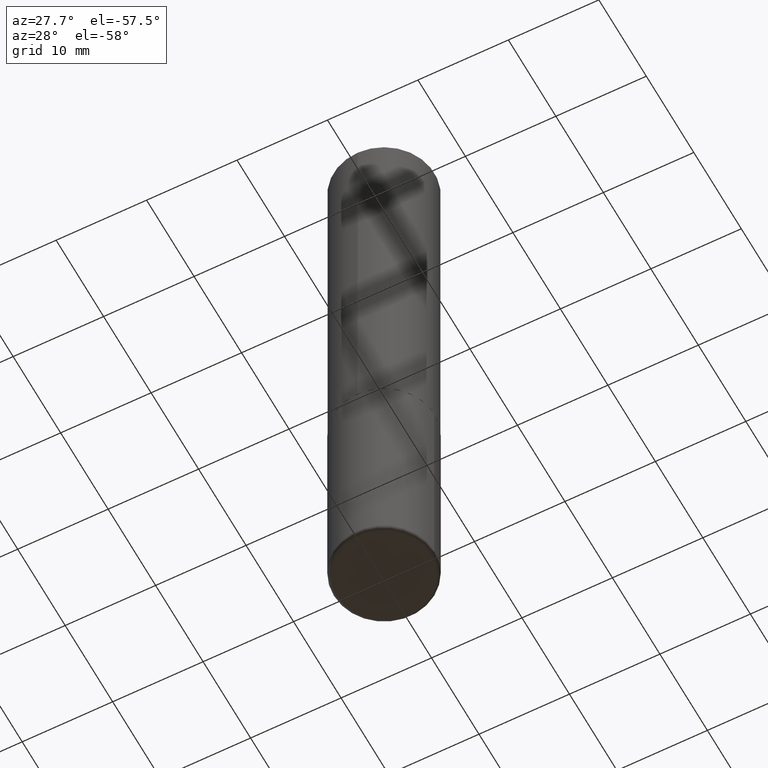
[diagram: clean part render]
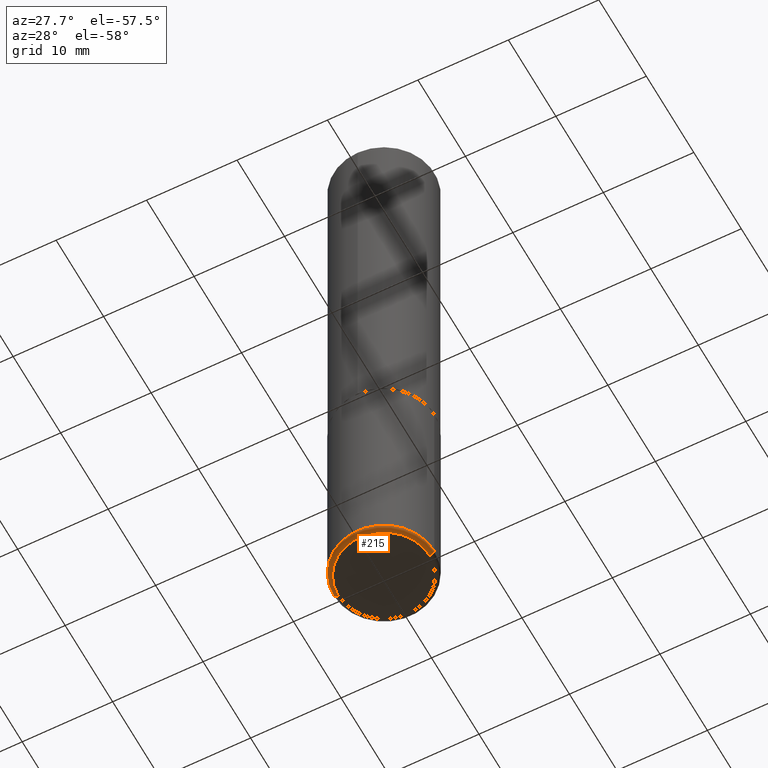
[diagram: same view with one face highlighted and labeled with its STEP entity id]
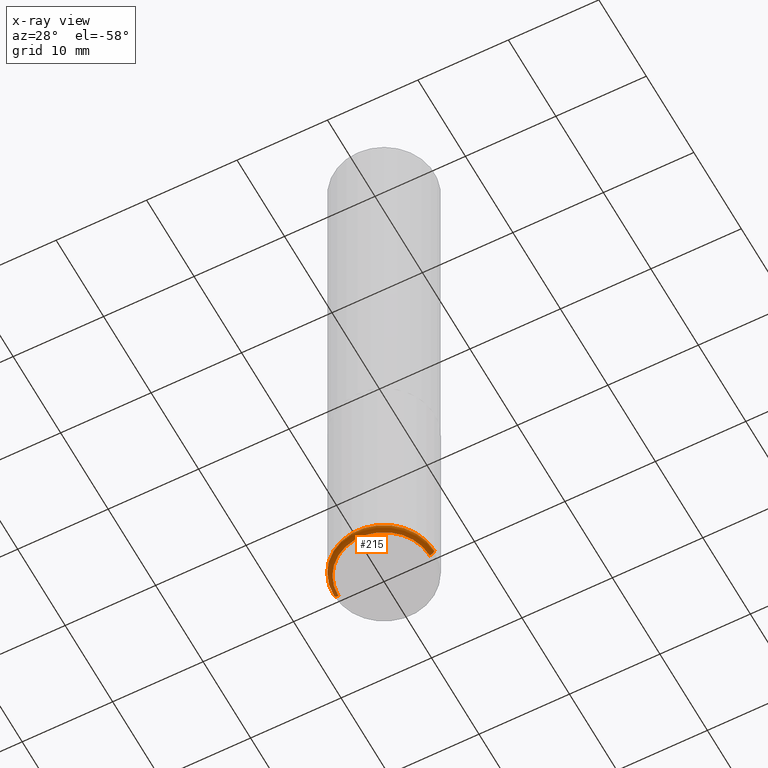
[diagram: x-ray of the same camera — body ghosted, the highlighted face saturated]
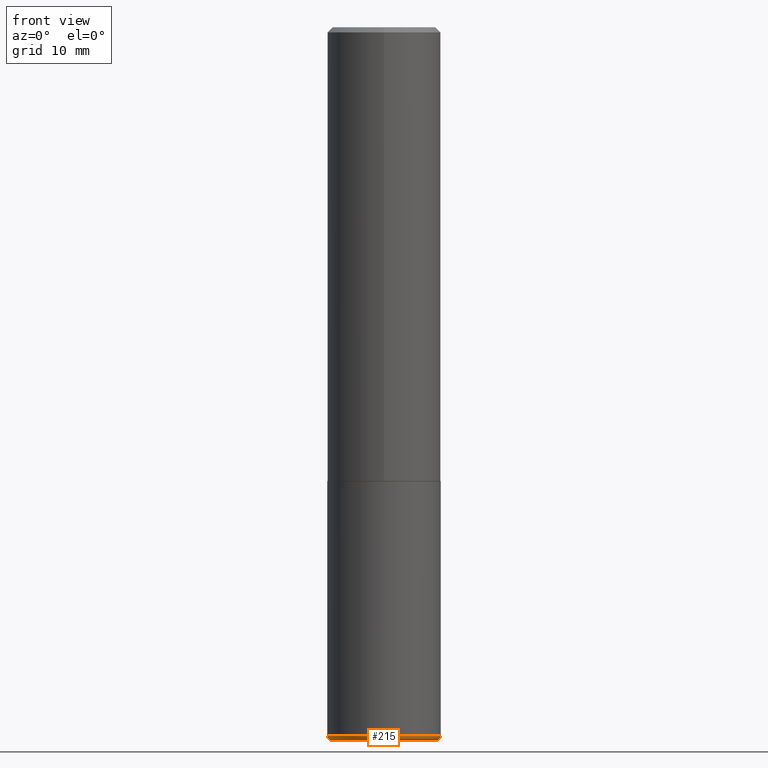
[diagram: same view with one face highlighted and labeled with its STEP entity id]
A machine part, auxiliary view. The second image highlights one B-rep face of the part: STEP entity #215.
The next image is the same camera in x-ray: the body ghosted, the highlighted face saturated — about 0% of this face is hidden behind the body in this view.
A second angle (front view) of the same face is appended — the face is thin or edge-on in the first view.
In plain terms, the highlighted toroidal blend (fillet) surface has major radius 5.0483 mm and minor (blend) radius 0.508 mm.
Its self-contained STEP definition (entity closure, byte-faithful):
#3 = EDGE_CURVE ( 'NONE', #267, #162, #219, .T. ) ;
#9 = CARTESIAN_POINT ( 'NONE',  ( 0.1987500000000000100, -1.098943751400879489E-14, -2.750000000000000000 ) ) ;
#16 = CARTESIAN_POINT ( 'NONE',  ( -0.1987500000000000100, -8.119540367718587568E-15, -2.729999999999999982 ) ) ;
#20 = DIRECTION ( 'NONE',  ( -2.445468806185136597E-29, 3.491481338843145583E-15, 1.000000000000000000 ) ) ;
#26 = CIRCLE ( 'NONE', #268, 0.01999999999999988939 ) ;
#39 = DIRECTION ( 'NONE',  ( -1.000000000000000000, 7.105427357601014480E-15, 0.000000000000000000 ) ) ;
#58 = AXIS2_PLACEMENT_3D ( 'NONE', #333, #94, #197 ) ;
#70 = VERTEX_POINT ( 'NONE', #185 ) ;
#71 = DIRECTION ( 'NONE',  ( 7.105427357601001859E-15, 1.000000000000000000, -3.491481338843145583E-15 ) ) ;
#76 = EDGE_CURVE ( 'NONE', #162, #70, #26, .T. ) ;
#77 = CARTESIAN_POINT ( 'NONE',  ( -0.2187499999999999445, -7.977431820566568982E-15, -2.729999999999999982 ) ) ;
#85 = AXIS2_PLACEMENT_3D ( 'NONE', #190, #91, #261 ) ;
#91 = DIRECTION ( 'NONE',  ( -2.445468806185136597E-29, 3.491481338843145583E-15, 1.000000000000000000 ) ) ;
#94 = DIRECTION ( 'NONE',  ( -2.445468806185136597E-29, 3.491481338843145583E-15, 1.000000000000000000 ) ) ;
#108 = ORIENTED_EDGE ( 'NONE', *, *, #207, .F. ) ;
#110 = CIRCLE ( 'NONE', #85, 0.2187500000000000000 ) ;
#112 = DIRECTION ( 'NONE',  ( 1.000000000000000000, -6.982962677686265133E-15, 0.000000000000000000 ) ) ;
#123 = AXIS2_PLACEMENT_3D ( 'NONE', #374, #20, #112 ) ;
#128 = CIRCLE ( 'NONE', #381, 0.01999999999999988939 ) ;
#131 = CARTESIAN_POINT ( 'NONE',  ( -0.1987500000000000100, -8.083400907531010713E-15, -2.750000000000000000 ) ) ;
#162 = VERTEX_POINT ( 'NONE', #9 ) ;
#185 = CARTESIAN_POINT ( 'NONE',  ( 0.2187499999999999445, -1.105926714078565662E-14, -2.729999999999999982 ) ) ;
#190 = CARTESIAN_POINT ( 'NONE',  ( 6.676129840885423672E-29, -9.531744055041786561E-15, -2.729999999999999982 ) ) ;
#197 = DIRECTION ( 'NONE',  ( 1.000000000000000000, -6.982962677686266711E-15, 4.883557194083112901E-29 ) ) ;
#207 = EDGE_CURVE ( 'NONE', #395, #70, #110, .T. ) ;
#215 = ADVANCED_FACE ( 'NONE', ( #221 ), #417, .T. ) ;
#219 = CIRCLE ( 'NONE', #123, 0.1987500000000000100 ) ;
#221 = FACE_OUTER_BOUND ( 'NONE', #271, .T. ) ;
#222 = ORIENTED_EDGE ( 'NONE', *, *, #76, .T. ) ;
#250 = CARTESIAN_POINT ( 'NONE',  ( 0.1987500000000000100, -1.091960788723193160E-14, -2.729999999999999982 ) ) ;
#261 = DIRECTION ( 'NONE',  ( 1.000000000000000000, -6.982962677686262766E-15, 0.000000000000000000 ) ) ;
#267 = VERTEX_POINT ( 'NONE', #131 ) ;
#268 = AXIS2_PLACEMENT_3D ( 'NONE', #250, #325, #384 ) ;
#271 = EDGE_LOOP ( 'NONE', ( #273, #334, #222, #108 ) ) ;
#273 = ORIENTED_EDGE ( 'NONE', *, *, #370, .F. ) ;
#325 = DIRECTION ( 'NONE',  ( -6.982962677686266711E-15, -1.000000000000000000, 3.491481338843145583E-15 ) ) ;
#333 = CARTESIAN_POINT ( 'NONE',  ( 6.676129840885423672E-29, -9.531744055041786561E-15, -2.729999999999999982 ) ) ;
#334 = ORIENTED_EDGE ( 'NONE', *, *, #3, .T. ) ;
#370 = EDGE_CURVE ( 'NONE', #267, #395, #128, .T. ) ;
#374 = CARTESIAN_POINT ( 'NONE',  ( 6.725039217009124520E-29, -9.601573681818649859E-15, -2.750000000000000000 ) ) ;
#381 = AXIS2_PLACEMENT_3D ( 'NONE', #16, #71, #39 ) ;
#384 = DIRECTION ( 'NONE',  ( 1.000000000000000000, -6.982962677686274599E-15, 0.000000000000000000 ) ) ;
#395 = VERTEX_POINT ( 'NONE', #77 ) ;
#417 = TOROIDAL_SURFACE ( 'NONE', #58, 0.1987500000000000100, 0.01999999999999988939 ) ;